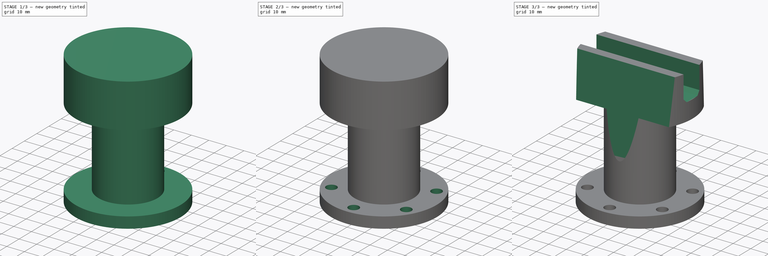
[diagram: build sequence overview — one tinted view per stage of 3, left to right]
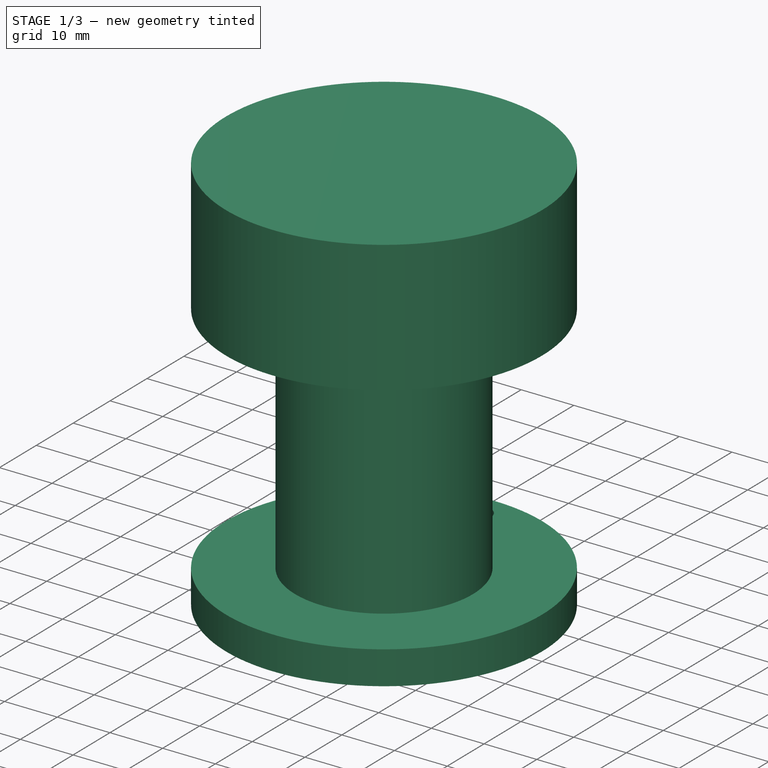
[diagram: stage 1 of 3 — iso view after this stage's code; geometry added in this stage tinted green]
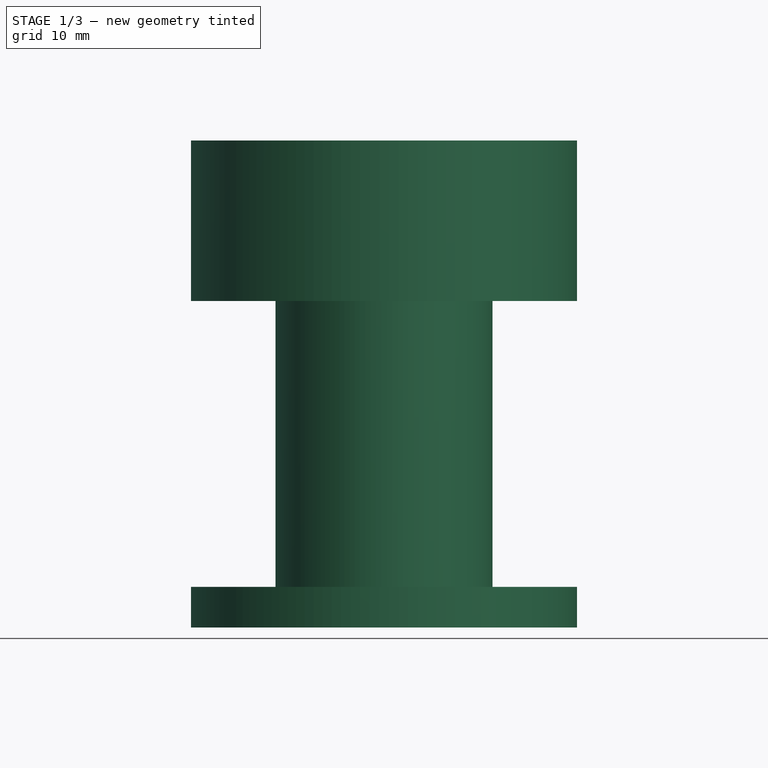
[diagram: stage 1 of 3 — front view after this stage's code; geometry added in this stage tinted green]
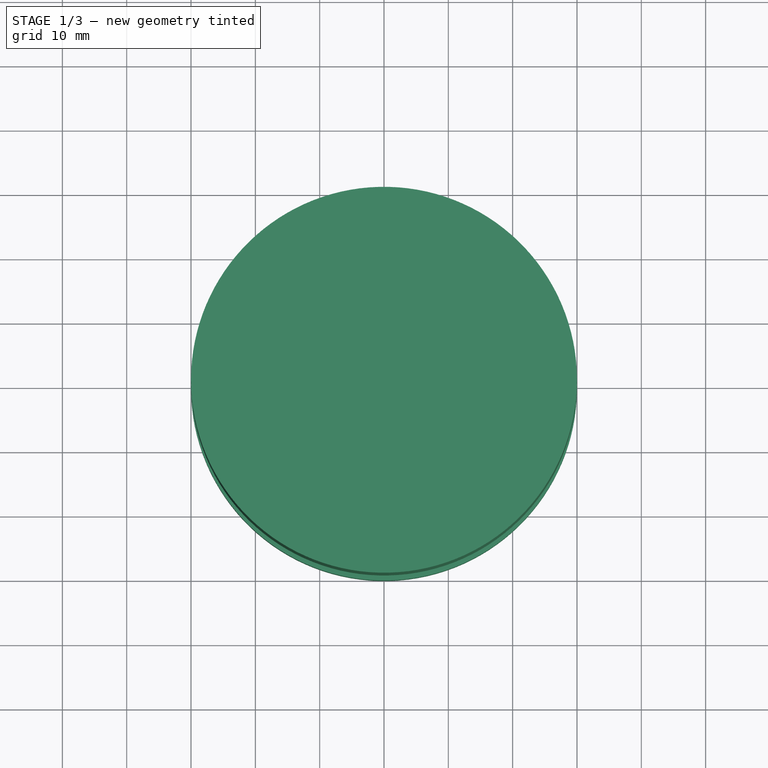
[diagram: stage 1 of 3 — top view after this stage's code; geometry added in this stage tinted green]
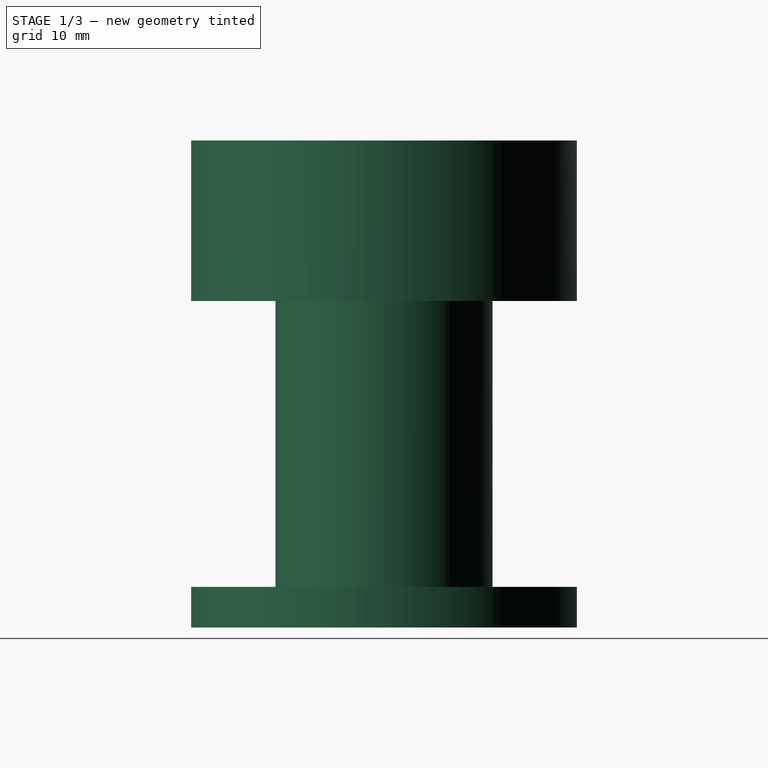
[diagram: stage 1 of 3 — right view after this stage's code; geometry added in this stage tinted green]
FCSTD DOCUMENT  (FreeCAD 0.21R33771 (Git))
Label: ex08
License: All rights reserved
LicenseURL: http://en.wikipedia.org/wiki/All_rights_reserved
objects: Sketcher::SketchObject×3, PartDesign::Pocket×2, PartDesign::Revolution×1, PartDesign::PolarPattern×1, PartDesign::Chamfer×1, PartDesign::Body×1
note: 13 computed .brp shape members not serialized (recipe doc carries the construction recipe); baked Part::Feature solids carry a one-line shape summary decoded from their .brp

FEATURE [Sketcher::SketchObject] Sketch
  FullyConstrained = false
  MapMode = 5
  Placement = pos=(0,0,0) rot=(1,0,0;1.5708rad)
  Support = -> [XZ_Plane]
  sketch-geometry (10):
    g0: LineSegment StartX=-30 StartY=48.5025 StartZ=0 EndX=-30 EndY=23.5441 EndZ=0
    g1: LineSegment StartX=-30 StartY=23.5441 StartZ=0 EndX=-16.871 EndY=23.5441 EndZ=0
    g2: LineSegment StartX=0 StartY=48.5025 StartZ=0 EndX=-30 EndY=48.5025 EndZ=0
    g3: GeomPoint X=-1e-16 Y=36.0233 Z=0
    g4: LineSegment StartX=-30 StartY=-20.8819 StartZ=0 EndX=-30 EndY=-27.2047 EndZ=0
    g5: LineSegment StartX=-30 StartY=-27.2047 StartZ=0 EndX=0 EndY=-27.2047 EndZ=0
    g6: GeomPoint X=0 Y=-24.0433 Z=0
    g7: LineSegment StartX=-16.871 StartY=23.5441 StartZ=0 EndX=-16.871 EndY=-20.8819 EndZ=0
    g8: LineSegment StartX=0 StartY=48.5025 StartZ=0 EndX=0 EndY=-27.2047 EndZ=0
    g9: LineSegment StartX=-16.871 StartY=-20.8819 StartZ=0 EndX=-30 EndY=-20.8819 EndZ=0
  constraints (17):
    c: Coincident(g0,g1)
    c: Coincident(g2,g0)
    c: Horizontal(g1)
    c: Horizontal(g2)
    c: Vertical(g0)
    c: PointOnObject(g3,g-2)
    c: Coincident(g4,g5)
    c: Coincident(g9,g4)
    c: Horizontal(g5)
    c: Vertical(g4)
    c: PointOnObject(g6,g-2)
    c: Vertical(g7)
    c: Vertical(g8)
    c: Coincident(g9,g7)
    c: Coincident(g1,g7)
    c: Coincident(g2,g8)
    c: Coincident(g5,g8)
FEATURE [PartDesign::Revolution] Revolution
  Angle = 360
  Axis = (0,2e-16,1)
  Base = (0,0,0)
  Placement = pos=(0,0,0) rot=(1,0,0;1.5708rad)
  Profile = -> Sketch
  ReferenceAxis = -> Sketch [V_Axis]
  Refine = true
FEATURE [Sketcher::SketchObject] Sketch001
  FullyConstrained = false
  MapMode = 5
  Placement = pos=(0,-4.6e-15,-20.8819) rot=(0,0,1;3.14159rad)
  Support = -> [Revolution]
  sketch-geometry (1):
    g0: Circle CenterX=0 CenterY=-24.6099 CenterZ=0 NormalX=0 NormalY=0 NormalZ=1 AngleXU=0 Radius=2.96342
  constraints (1):
    c: PointOnObject(g0,g-2)
FEATURE [PartDesign::Pocket] Pocket
  BaseFeature = -> Revolution
  Direction = (0,-2e-16,-1)
  Length = 5
  Length2 = 5
  Placement = pos=(0,0,0) rot=(1,0,0;1.5708rad)
  Profile = -> Sketch001
  ReferenceAxis = -> Sketch001 [N_Axis]
  Refine = true
  Type = 1
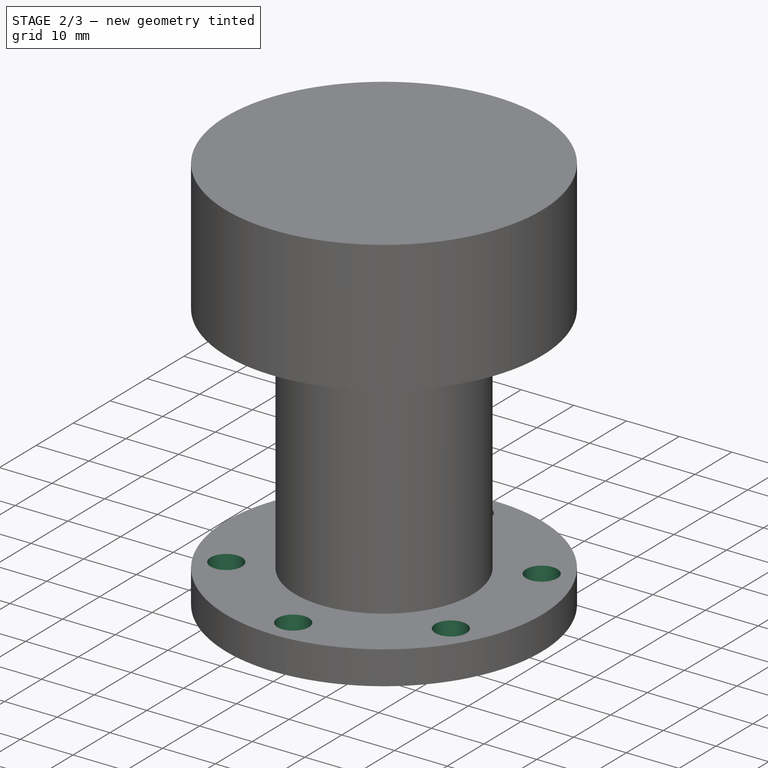
[diagram: stage 2 of 3 — iso view after this stage's code; geometry added in this stage tinted green]
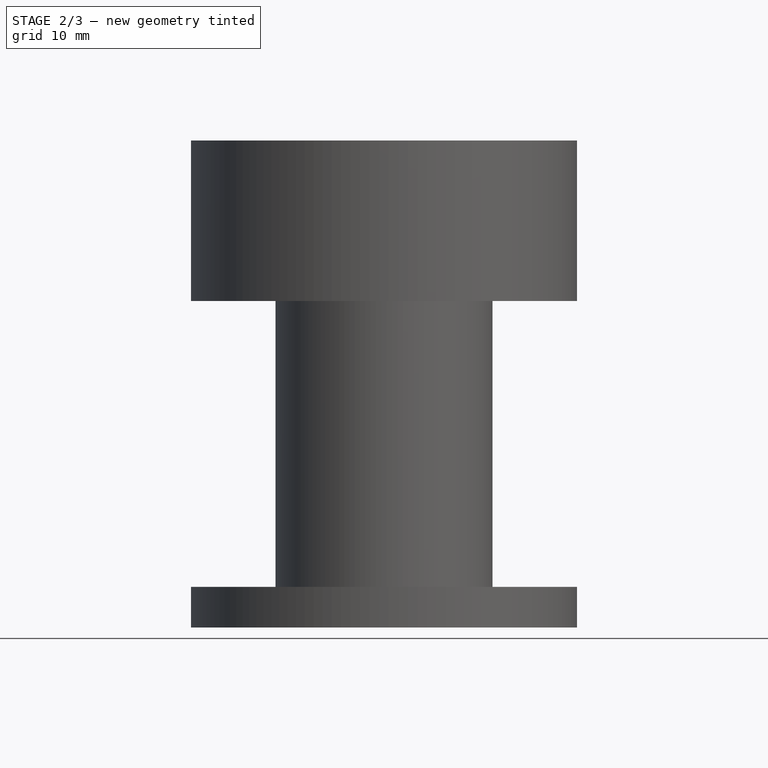
[diagram: stage 2 of 3 — front view after this stage's code; geometry added in this stage tinted green]
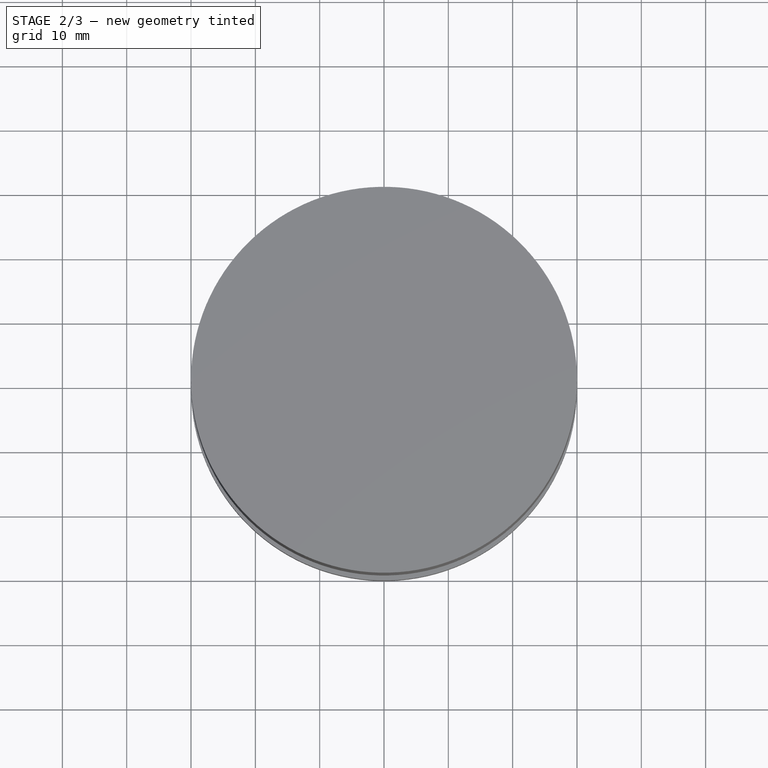
[diagram: stage 2 of 3 — top view after this stage's code; geometry added in this stage tinted green]
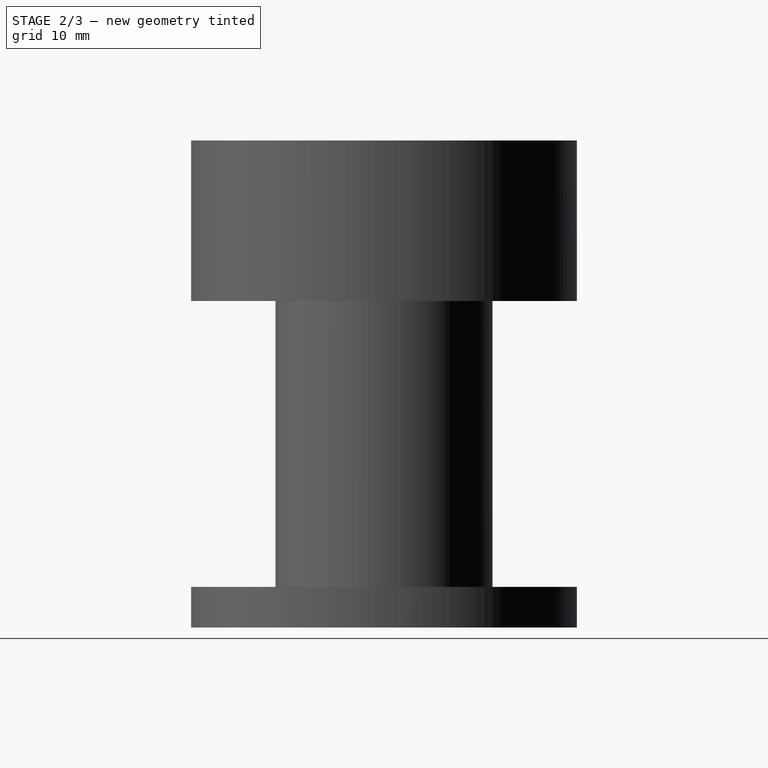
[diagram: stage 2 of 3 — right view after this stage's code; geometry added in this stage tinted green]
FEATURE [PartDesign::PolarPattern] PolarPattern
  Angle = 360
  Axis = -> Sketch001 [N_Axis]
  BaseFeature = -> Pocket
  Occurrences = 6
  Originals = -> [Pocket]
  Placement = pos=(0,0,0) rot=(1,0,0;1.5708rad)
  Refine = true
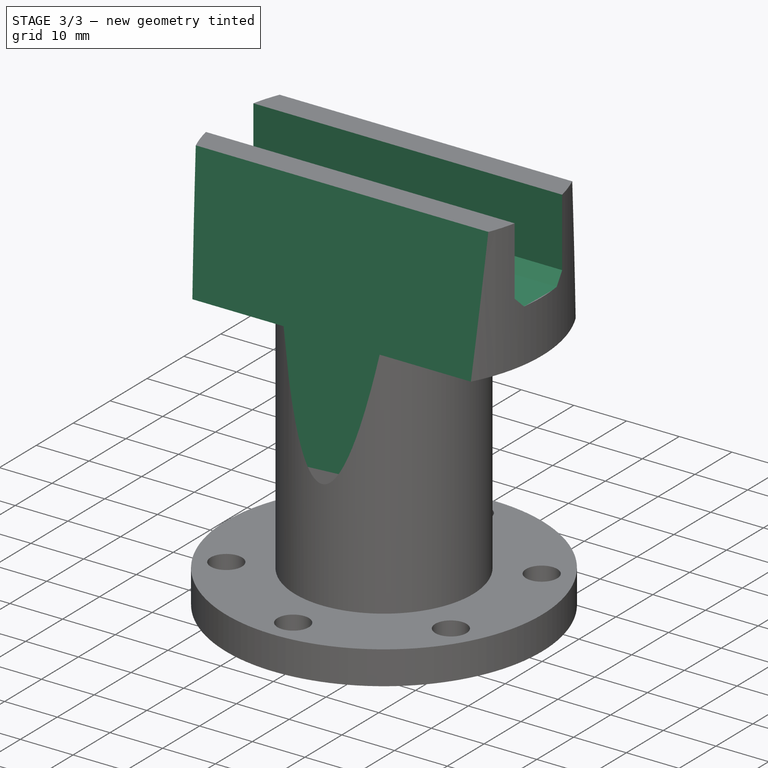
[diagram: stage 3 of 3 — iso view after this stage's code; geometry added in this stage tinted green]
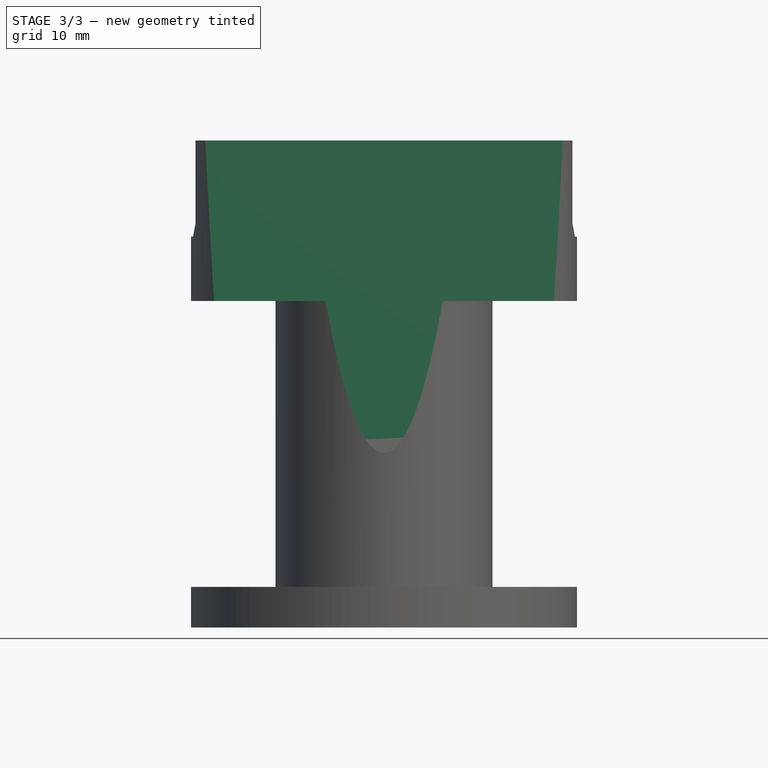
[diagram: stage 3 of 3 — front view after this stage's code; geometry added in this stage tinted green]
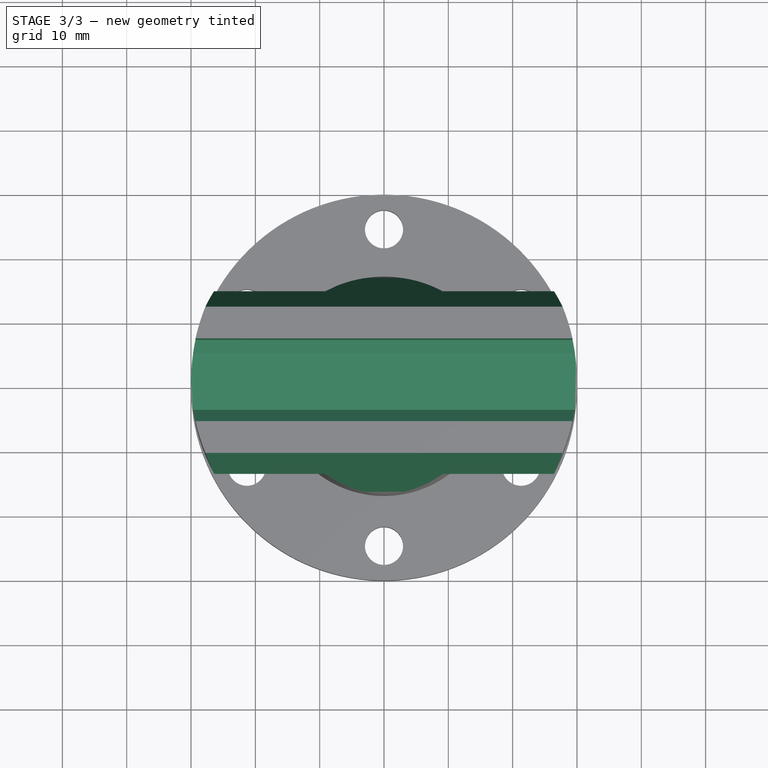
[diagram: stage 3 of 3 — top view after this stage's code; geometry added in this stage tinted green]
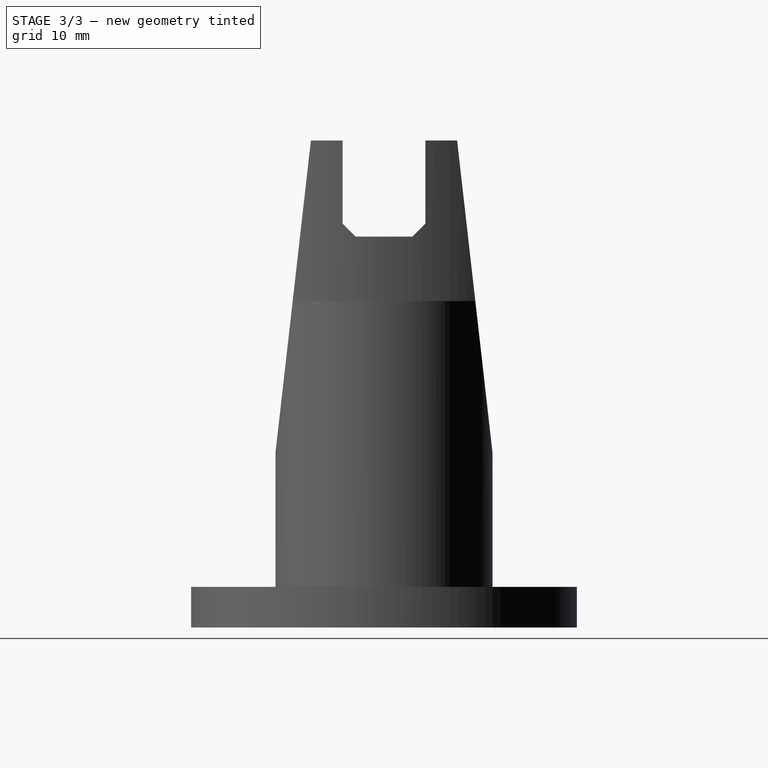
[diagram: stage 3 of 3 — right view after this stage's code; geometry added in this stage tinted green]
FEATURE [Sketcher::SketchObject] Sketch002
  FullyConstrained = false
  MapMode = 5
  Placement = pos=(0,0,0) rot=(0.57735,0.57735,0.57735;2.0944rad)
  Support = -> [YZ_Plane]
  sketch-geometry (16):
    g0: LineSegment StartX=-46.9422 StartY=56.3376 StartZ=0 EndX=-46.9422 EndY=49.8943 EndZ=0
    g1: LineSegment StartX=-11.2083 StartY=49.8943 StartZ=0 EndX=-6.42889 EndY=49.8943 EndZ=0
    g2: LineSegment StartX=46.9422 StartY=49.8943 StartZ=0 EndX=46.9422 EndY=56.3376 EndZ=0
    g3: LineSegment StartX=46.9422 StartY=56.3376 StartZ=0 EndX=-46.9422 EndY=56.3376 EndZ=0
    g4: GeomPoint X=0 Y=53.1159 Z=0
    g5: LineSegment StartX=11.2083 StartY=49.8943 StartZ=0 EndX=18.0743 EndY=-10.6572 EndZ=0
    g6: LineSegment StartX=-11.2083 StartY=49.8943 StartZ=0 EndX=-18.0743 EndY=-10.6572 EndZ=0
    g7: LineSegment StartX=-46.9422 StartY=49.8943 StartZ=0 EndX=-46.9422 EndY=-10.6572 EndZ=0
    g8: LineSegment StartX=-46.9422 StartY=-10.6572 StartZ=0 EndX=-18.0743 EndY=-10.6572 EndZ=0
    g9: LineSegment StartX=18.0743 StartY=-10.6572 StartZ=0 EndX=46.9422 EndY=-10.6572 EndZ=0
    g10: LineSegment StartX=46.9422 StartY=-10.6572 StartZ=0 EndX=46.9422 EndY=49.8943 EndZ=0
    g11: LineSegment StartX=-6.42889 StartY=33.5674 StartZ=0 EndX=6.42889 EndY=33.5674 EndZ=0
    g12: LineSegment StartX=6.42889 StartY=33.5674 StartZ=0 EndX=6.42889 EndY=49.8943 EndZ=0
    g13: GeomPoint X=0 Y=49.8943 Z=0
    g14: LineSegment StartX=6.42889 StartY=49.8943 StartZ=0 EndX=11.2083 EndY=49.8943 EndZ=0
    g15: LineSegment StartX=-6.42889 StartY=49.8943 StartZ=0 EndX=-6.42889 EndY=33.5674 EndZ=0
  constraints (29):
    c: Coincident(g2,g3)
    c: Coincident(g3,g0)
    c: Horizontal(g1)
    c: Horizontal(g3)
    c: Vertical(g0)
    c: Vertical(g2)
    c: PointOnObject(g4,g-2)
    c: PointOnObject(g5,g1)
    c: Symmetric(g6,g5,g-2)
    c: Symmetric(g6,g5,g-2)
    c: Coincident(g7,g0)
    c: Vertical(g7)
    c: Coincident(g8,g7)
    c: Coincident(g8,g6)
    c: Horizontal(g8)
    c: Coincident(g9,g5)
    c: Horizontal(g9)
    c: Coincident(g10,g2)
    c: Vertical(g10)
    c: Coincident(g9,g10)
    c: Coincident(g15,g11)
    c: Coincident(g11,g12)
    c: Horizontal(g11)
    c: Vertical(g12)
    c: PointOnObject(g13,g1)
    c: PointOnObject(g1,g6)
    c: Coincident(g15,g1)
    c: Coincident(g12,g14)
    c: PointOnObject(g14,g5)
FEATURE [PartDesign::Pocket] Pocket001
  BaseFeature = -> PolarPattern
  Direction = (-1,2e-16,-3e-16)
  Length = 82
  Length2 = 5
  Midplane = true
  Placement = pos=(0,0,0) rot=(1,0,0;1.5708rad)
  Profile = -> Sketch002
  ReferenceAxis = -> Sketch002 [N_Axis]
  Refine = true
  Type = 0
FEATURE [PartDesign::Chamfer] Chamfer
  Angle = 45
  Base = -> Pocket001 [Edge15,Edge19]
  BaseFeature = -> Pocket001
  ChamferType = 0
  FlipDirection = false
  Placement = pos=(0,0,0) rot=(1,0,0;1.5708rad)
  Refine = true
  Size = 2
  Size2 = 1
  SupportTransform = false
  UseAllEdges = false
FEATURE [PartDesign::Body] Body
  Group = -> [Sketch,Revolution,Sketch001,Pocket,PolarPattern,Sketch002,Pocket001,Chamfer]
  Origin = -> Origin
  Tip = -> Chamfer
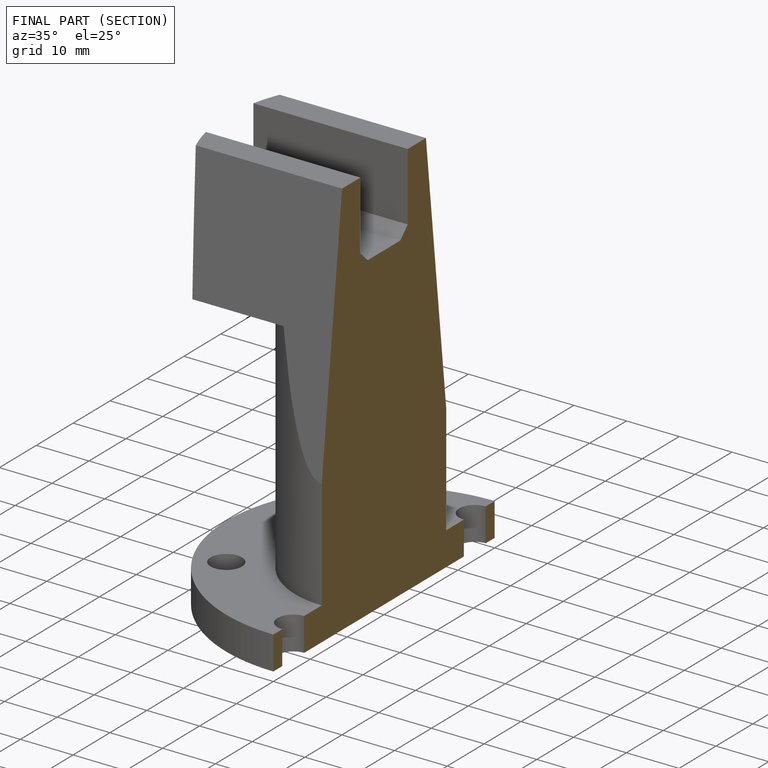
[diagram: finished part — half-section view (interior)]
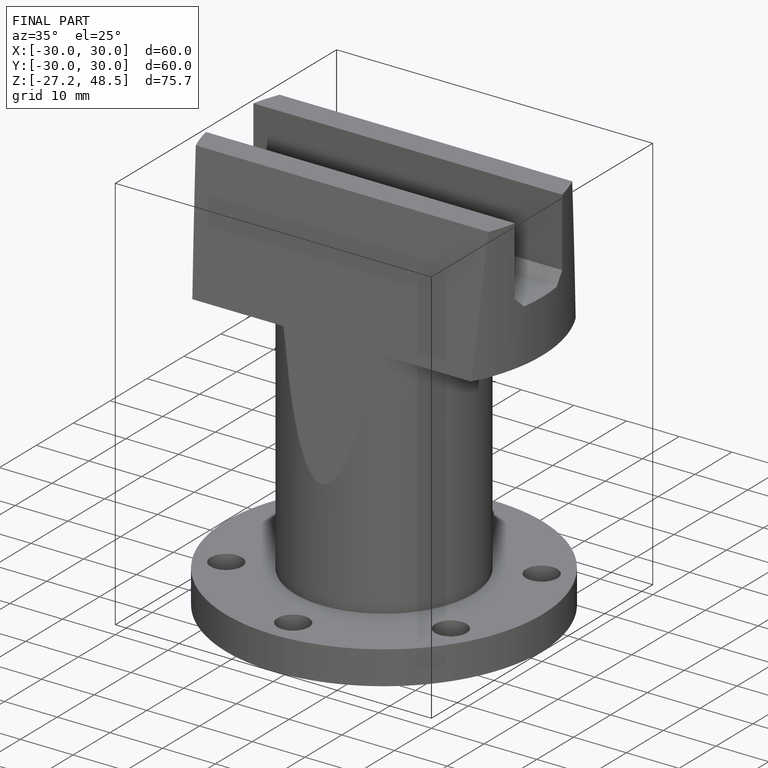
[diagram: finished part — iso view with bounding-box wireframe]
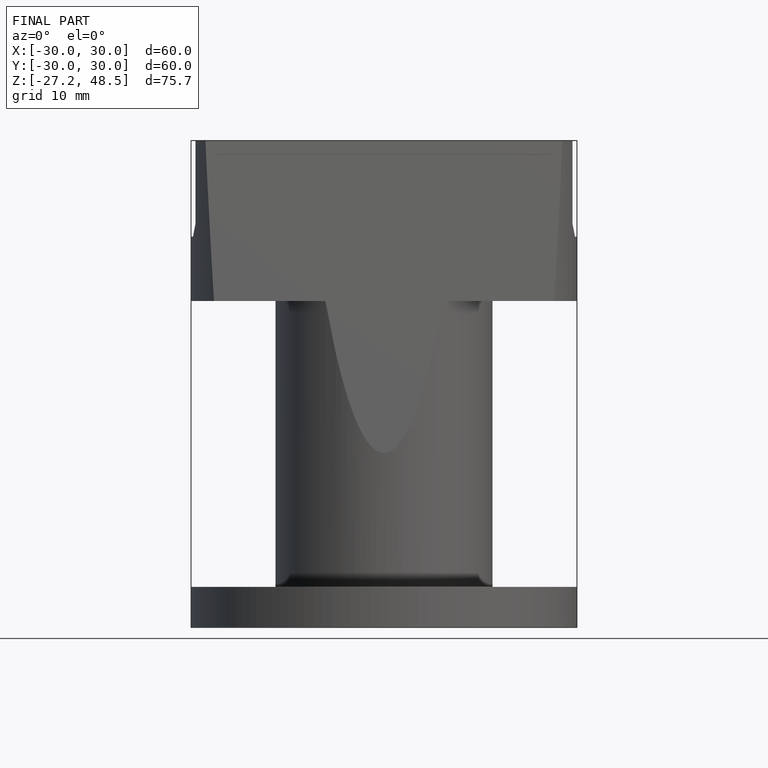
[diagram: finished part — front view with bounding-box wireframe]
